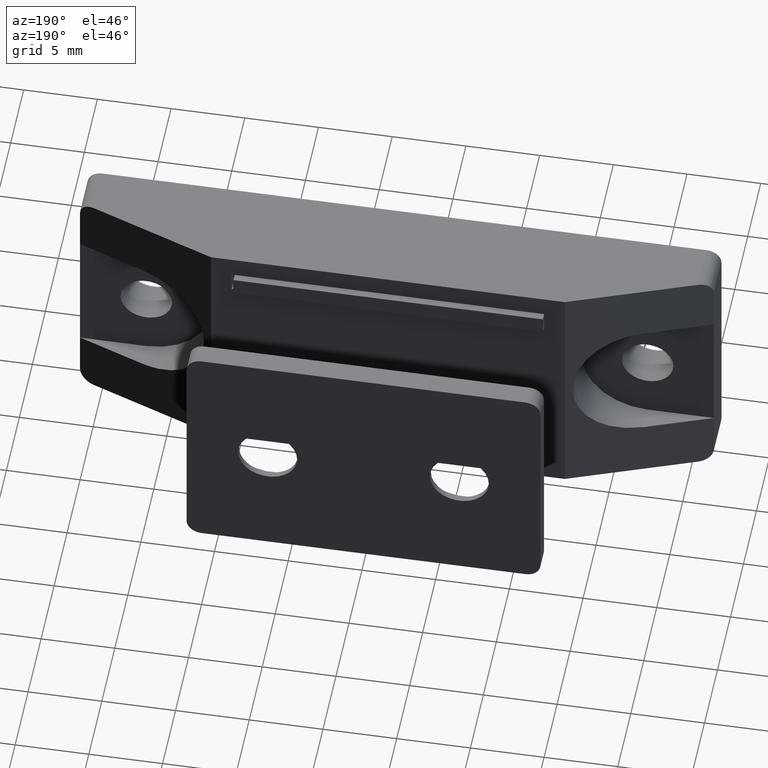
[diagram: clean part render]
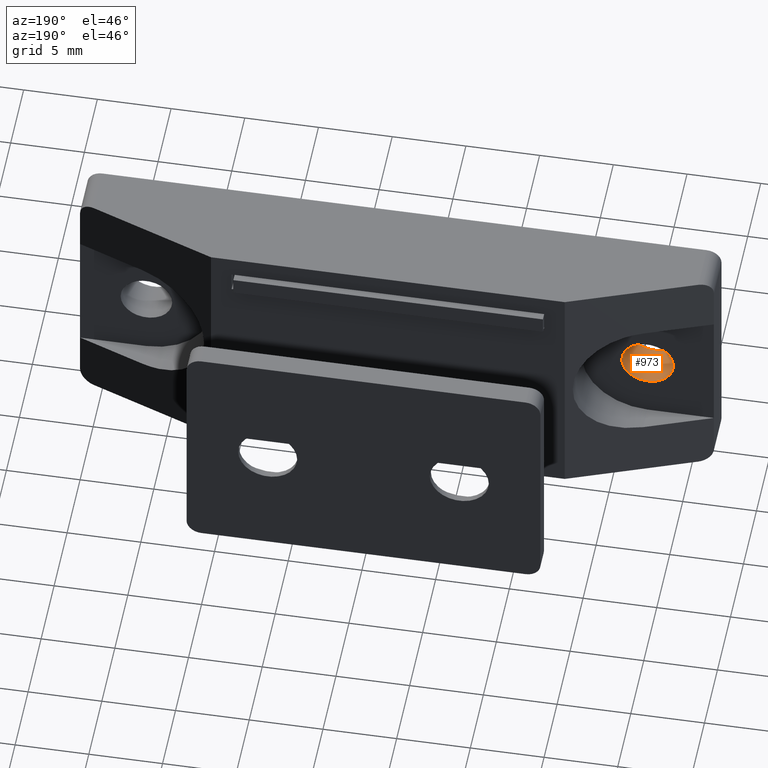
[diagram: same view with one face highlighted and labeled with its STEP entity id]
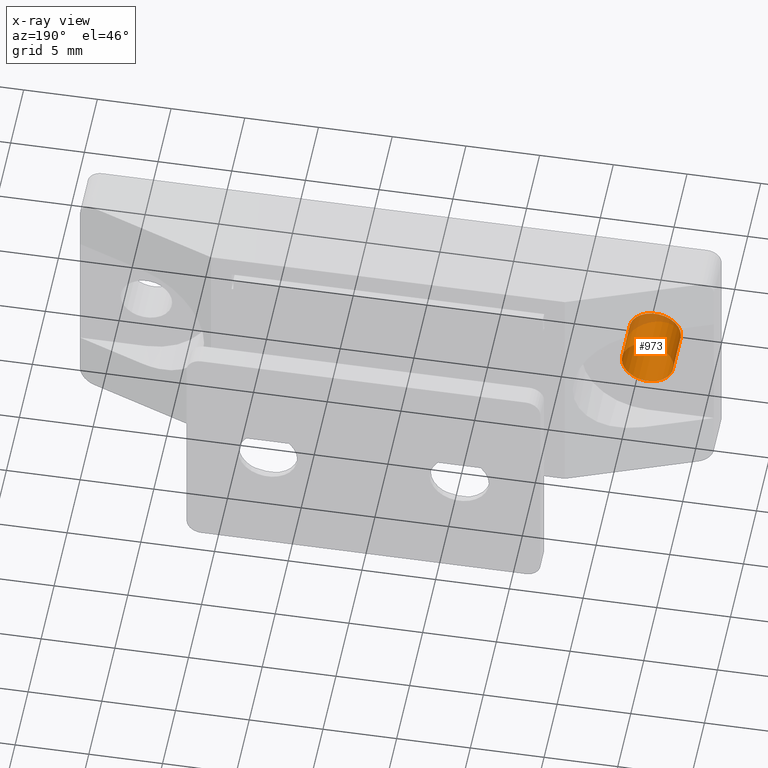
[diagram: x-ray of the same camera — body ghosted, the highlighted face saturated]
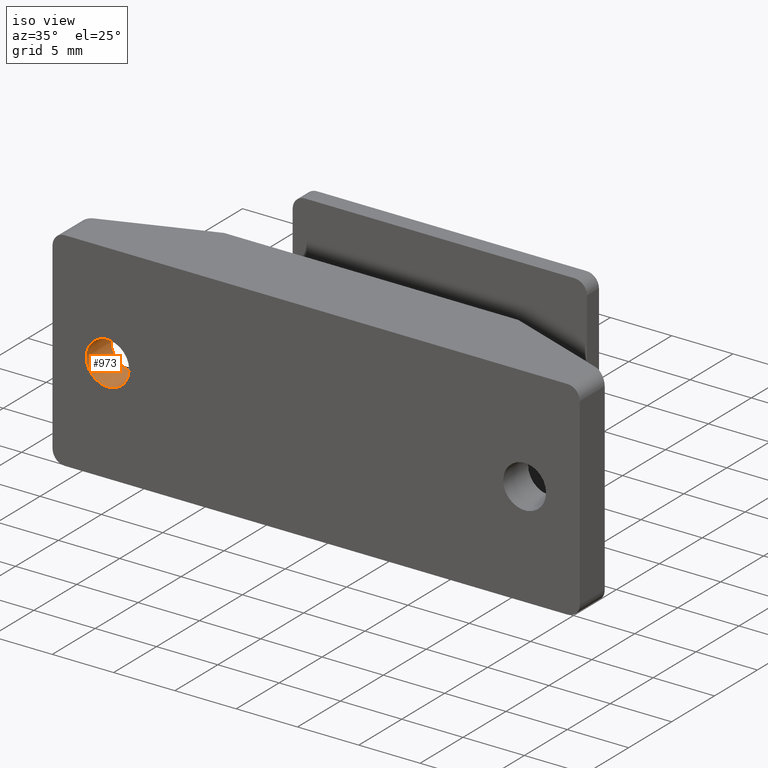
[diagram: same view with one face highlighted and labeled with its STEP entity id]
A machine part, auxiliary view. The second image highlights one B-rep face of the part: STEP entity #973.
The next image is the same camera in x-ray: the body ghosted, the highlighted face saturated — about 13% of this face is hidden behind the body in this view.
A second angle (iso view) of the same face is appended — the face is thin or edge-on in the first view.
In plain terms, the highlighted cylindrical surface (bore or boss wall) has radius 1.75 mm, axis along (0, 1, -0).
Its self-contained STEP definition (entity closure, byte-faithful):
#44=FACE_BOUND('',#168,.T.);
#107=FACE_OUTER_BOUND('',#167,.T.);
#167=EDGE_LOOP('',(#726));
#168=EDGE_LOOP('',(#727));
#446=CIRCLE('',#1037,1.75);
#448=CIRCLE('',#1047,1.75);
#479=VERTEX_POINT('',#1447);
#488=VERTEX_POINT('',#1474);
#571=EDGE_CURVE('',#479,#479,#446,.T.);
#584=EDGE_CURVE('',#488,#488,#448,.T.);
#726=ORIENTED_EDGE('',*,*,#571,.F.);
#727=ORIENTED_EDGE('',*,*,#584,.F.);
#956=CYLINDRICAL_SURFACE('',#1046,1.75);
#973=ADVANCED_FACE('',(#107,#44),#956,.F.);
#1037=AXIS2_PLACEMENT_3D('',#1448,#1151,#1152);
#1046=AXIS2_PLACEMENT_3D('',#1473,#1177,#1178);
#1047=AXIS2_PLACEMENT_3D('',#1475,#1179,#1180);
#1151=DIRECTION('center_axis',(0.,0.,1.));
#1152=DIRECTION('ref_axis',(1.,0.,0.));
#1177=DIRECTION('center_axis',(0.,0.,1.));
#1178=DIRECTION('ref_axis',(1.,0.,0.));
#1179=DIRECTION('center_axis',(0.,0.,-1.));
#1180=DIRECTION('ref_axis',(1.,0.,0.));
#1447=CARTESIAN_POINT('',(-18.75,6.32425663055023E-17,-6.4));
#1448=CARTESIAN_POINT('Origin',(-17.,2.77555756156289E-16,-6.4));
#1473=CARTESIAN_POINT('Origin',(-17.,2.77555756156289E-16,-3.5));
#1474=CARTESIAN_POINT('',(-18.75,4.91868946007076E-16,-3.5));
#1475=CARTESIAN_POINT('Origin',(-17.,2.77555756156289E-16,-3.5));